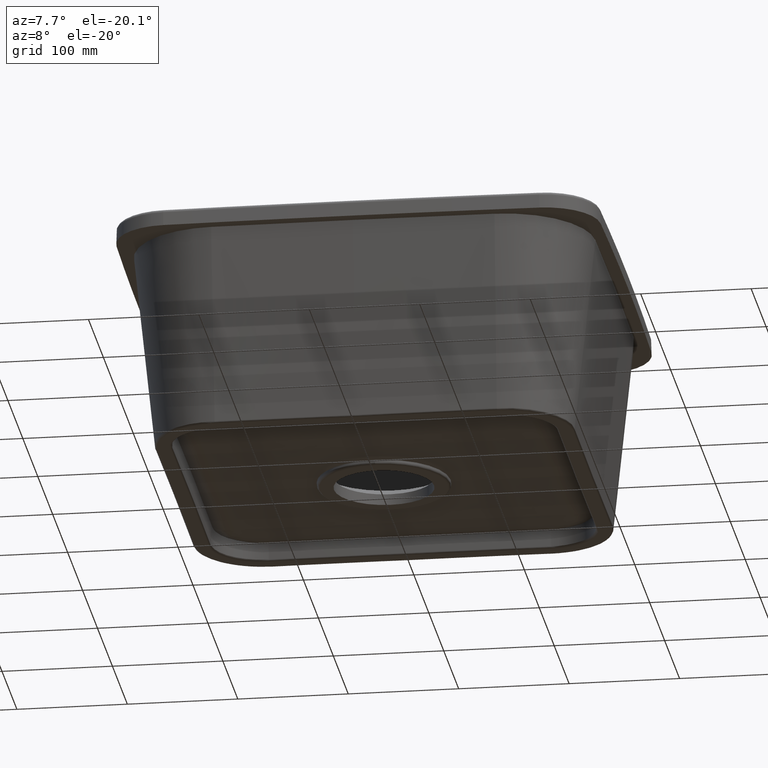
[diagram: clean part render]
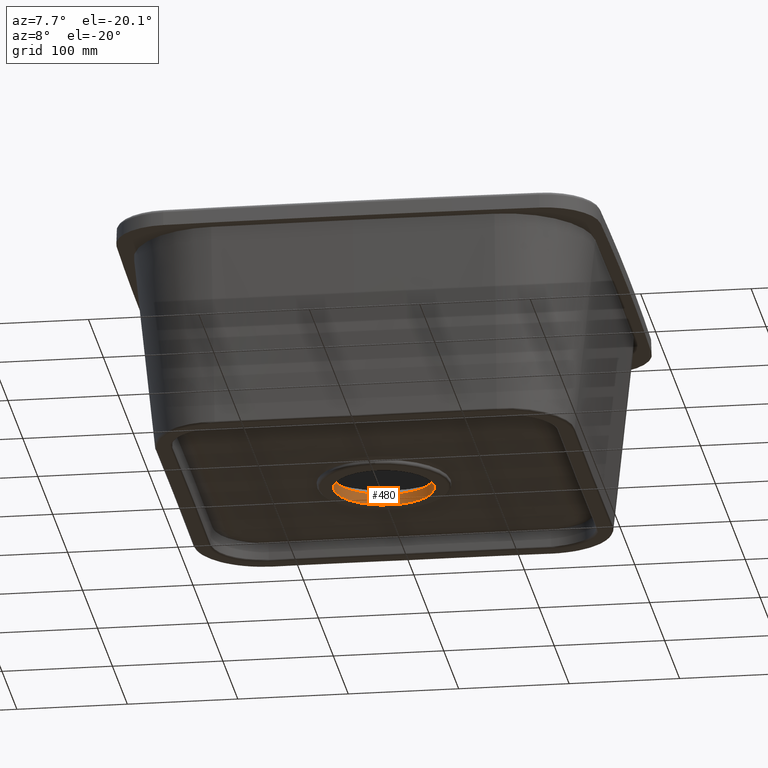
[diagram: same view with one face highlighted and labeled with its STEP entity id]
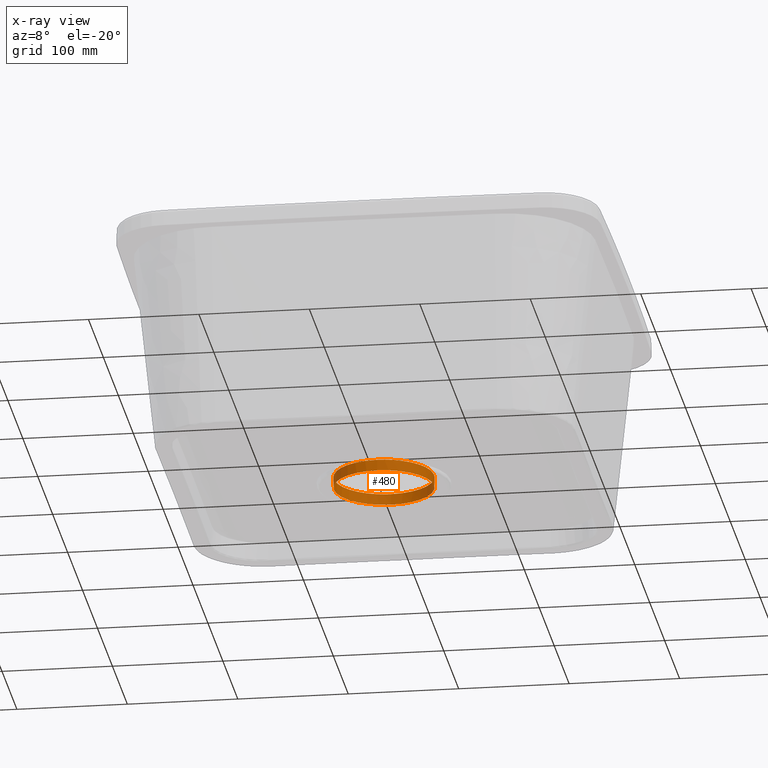
[diagram: x-ray of the same camera — body ghosted, the highlighted face saturated]
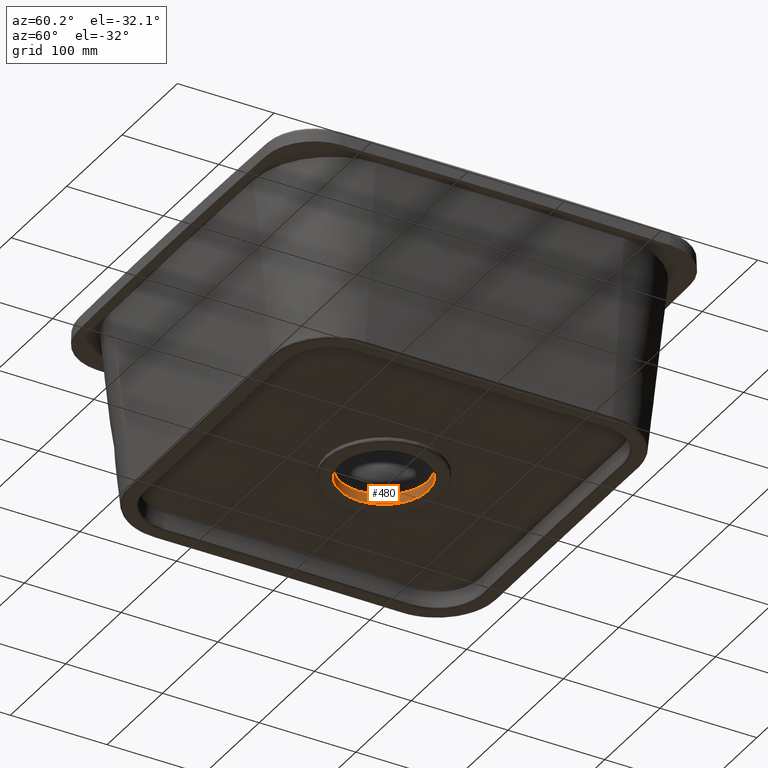
[diagram: same view with one face highlighted and labeled with its STEP entity id]
A machine part, auxiliary view. The second image highlights one B-rep face of the part: STEP entity #480.
The next image is the same camera in x-ray: the body ghosted, the highlighted face saturated — about 0% of this face is hidden behind the body in this view.
A second angle (auxiliary view) of the same face is appended — the face is thin or edge-on in the first view.
In plain terms, the highlighted cylindrical surface (bore or boss wall) has radius 45.3568 mm, axis along (0, 0, 1).
Its self-contained STEP definition (entity closure, byte-faithful):
#42=CYLINDRICAL_SURFACE('',#3051,45.3567920678671);
#43=FACE_BOUND('',#958,.T.);
#44=FACE_BOUND('',#959,.T.);
#480=ADVANCED_FACE('',(#43,#44),#42,.F.);
#958=EDGE_LOOP('',(#1536,#1537,#1538,#1539));
#959=EDGE_LOOP('',(#1540,#1541,#1542,#1543));
#1536=ORIENTED_EDGE('',*,*,#2474,.F.);
#1537=ORIENTED_EDGE('',*,*,#2447,.F.);
#1538=ORIENTED_EDGE('',*,*,#2475,.F.);
#1539=ORIENTED_EDGE('',*,*,#2476,.F.);
#1540=ORIENTED_EDGE('',*,*,#2437,.F.);
#1541=ORIENTED_EDGE('',*,*,#2440,.F.);
#1542=ORIENTED_EDGE('',*,*,#2442,.F.);
#1543=ORIENTED_EDGE('',*,*,#2443,.F.);
#2092=VERTEX_POINT('',#11851);
#2093=VERTEX_POINT('',#11862);
#2094=VERTEX_POINT('',#11866);
#2095=VERTEX_POINT('',#11879);
#2097=VERTEX_POINT('',#11904);
#2099=VERTEX_POINT('',#11925);
#2113=VERTEX_POINT('',#11999);
#2114=VERTEX_POINT('',#12039);
#2437=EDGE_CURVE('',#2092,#2093,#2828,.T.);
#2440=EDGE_CURVE('',#2094,#2092,#2829,.T.);
#2442=EDGE_CURVE('',#2095,#2094,#2830,.T.);
#2443=EDGE_CURVE('',#2093,#2095,#2831,.T.);
#2447=EDGE_CURVE('',#2099,#2097,#2833,.T.);
#2474=EDGE_CURVE('',#2097,#2113,#2839,.T.);
#2475=EDGE_CURVE('',#2114,#2099,#2840,.T.);
#2476=EDGE_CURVE('',#2113,#2114,#2841,.T.);
#2828=B_SPLINE_CURVE_WITH_KNOTS('',3,(#11852,#11853,#11854,#11855,#11856,
#11857,#11858,#11859,#11860,#11861),.UNSPECIFIED.,.F.,.F.,(4,2,2,2,4),(0.,
0.25,0.5,0.75,1.),.UNSPECIFIED.);
#2829=B_SPLINE_CURVE_WITH_KNOTS('',3,(#11867,#11868,#11869,#11870,#11871,
#11872,#11873,#11874,#11875,#11876),.UNSPECIFIED.,.F.,.F.,(4,2,2,2,4),(0.,
0.25,0.5,0.75,1.),.UNSPECIFIED.);
#2830=B_SPLINE_CURVE_WITH_KNOTS('',3,(#11880,#11881,#11882,#11883,#11884,
#11885,#11886,#11887,#11888,#11889),.UNSPECIFIED.,.F.,.F.,(4,2,2,2,4),(0.,
0.25,0.5,0.75,1.),.UNSPECIFIED.);
#2831=B_SPLINE_CURVE_WITH_KNOTS('',3,(#11891,#11892,#11893,#11894,#11895,
#11896,#11897,#11898,#11899,#11900),.UNSPECIFIED.,.F.,.F.,(4,2,2,2,4),(0.,
0.25,0.5,0.75,1.),.UNSPECIFIED.);
#2833=B_SPLINE_CURVE_WITH_KNOTS('',3,(#11926,#11927,#11928,#11929,#11930,
#11931,#11932,#11933,#11934,#11935),.UNSPECIFIED.,.F.,.F.,(4,2,2,2,4),(0.,
0.25,0.5,0.75,1.),.UNSPECIFIED.);
#2839=B_SPLINE_CURVE_WITH_KNOTS('',3,(#12018,#12019,#12020,#12021,#12022,
#12023,#12024,#12025,#12026,#12027),.UNSPECIFIED.,.F.,.F.,(4,2,2,2,4),(0.,
0.25,0.5,0.75,1.),.UNSPECIFIED.);
#2840=B_SPLINE_CURVE_WITH_KNOTS('',3,(#12029,#12030,#12031,#12032,#12033,
#12034,#12035,#12036,#12037,#12038),.UNSPECIFIED.,.F.,.F.,(4,2,2,2,4),(0.,
0.25,0.5,0.75,1.),.UNSPECIFIED.);
#2841=B_SPLINE_CURVE_WITH_KNOTS('',3,(#12040,#12041,#12042,#12043,#12044,
#12045,#12046,#12047,#12048,#12049),.UNSPECIFIED.,.F.,.F.,(4,2,2,2,4),(0.,
0.25,0.5,0.75,1.),.UNSPECIFIED.);
#3051=AXIS2_PLACEMENT_3D('',#12050,#3338,#3339);
#3338=DIRECTION('',(0.,0.,1.));
#3339=DIRECTION('',(1.,0.,0.));
#11851=CARTESIAN_POINT('',(-45.3567920678671,4.44368401804044E-15,-20.0000000000001));
#11852=CARTESIAN_POINT('',(-45.3567920678671,5.55460502255055E-15,-20.0000000000001));
#11853=CARTESIAN_POINT('',(-45.3567920678671,-6.0144246893901,-20.0000000000001));
#11854=CARTESIAN_POINT('',(-44.2056487756089,-11.8008727654302,-20.0000000000001));
#11855=CARTESIAN_POINT('',(-39.6027749281364,-22.9137129737719,-20.0000000000001));
#11856=CARTESIAN_POINT('',(-36.3246956303753,-27.8193542171313,-20.0000000000001));
#11857=CARTESIAN_POINT('',(-27.8194948577388,-36.3248362709827,-20.0000000000001));
#11858=CARTESIAN_POINT('',(-22.9138769768389,-39.6024917078764,-20.0000000000001));
#11859=CARTESIAN_POINT('',(-11.8007087623633,-44.2059319958689,-20.0000000000001));
#11860=CARTESIAN_POINT('',(-6.01494447249628,-45.3567920678671,-20.0000000000001));
#11861=CARTESIAN_POINT('',(-8.33190753382582E-15,-45.3567920678671,-20.0000000000001));
#11862=CARTESIAN_POINT('',(-6.66552602706066E-15,-45.3567920678671,-20.0000000000001));
#11866=CARTESIAN_POINT('',(2.22184200902022E-15,45.3567920678671,-20.0000000000001));
#11867=CARTESIAN_POINT('',(2.77730251127527E-15,45.3567920678671,-20.0000000000001));
#11868=CARTESIAN_POINT('',(-6.01442468944335,45.3567920678671,-20.0000000000001));
#11869=CARTESIAN_POINT('',(-11.8008727653925,44.2056487756466,-20.0000000000001));
#11870=CARTESIAN_POINT('',(-22.9137129738096,39.6027749280988,-20.0000000000001));
#11871=CARTESIAN_POINT('',(-27.8193542170804,36.3246956304262,-20.0000000000001));
#11872=CARTESIAN_POINT('',(-36.3248362710336,27.8194948576879,-20.0000000000001));
#11873=CARTESIAN_POINT('',(-39.6024917078764,22.9138769769108,-20.0000000000001));
#11874=CARTESIAN_POINT('',(-44.2059319958689,11.8007087622914,-20.0000000000001));
#11875=CARTESIAN_POINT('',(-45.3567920678671,6.01494447242434,-20.0000000000001));
#11876=CARTESIAN_POINT('',(-45.3567920678671,5.55460502255055E-15,-20.0000000000001));
#11879=CARTESIAN_POINT('',(45.3567920678671,-4.44368401804044E-15,-20.0000000000001));
#11880=CARTESIAN_POINT('',(45.3567920678671,0.,-20.0000000000001));
#11881=CARTESIAN_POINT('',(45.3567920678671,6.01442468944336,-20.0000000000001));
#11882=CARTESIAN_POINT('',(44.2056487756466,11.8008727653925,-20.0000000000001));
#11883=CARTESIAN_POINT('',(39.6027749280988,22.9137129738096,-20.0000000000001));
#11884=CARTESIAN_POINT('',(36.3246956304065,27.8193542171001,-20.0000000000001));
#11885=CARTESIAN_POINT('',(27.8194948577076,36.3248362710139,-20.0000000000001));
#11886=CARTESIAN_POINT('',(22.9138769768829,39.6024917078764,-20.0000000000001));
#11887=CARTESIAN_POINT('',(11.8007087623192,44.2059319958689,-20.0000000000001));
#11888=CARTESIAN_POINT('',(6.01494447245215,45.3567920678671,-20.0000000000001));
#11889=CARTESIAN_POINT('',(2.77730251127527E-15,45.3567920678671,-20.0000000000001));
#11891=CARTESIAN_POINT('',(-8.33190753382582E-15,-45.3567920678671,-20.0000000000001));
#11892=CARTESIAN_POINT('',(6.0144246893738,-45.3567920678671,-20.0000000000001));
#11893=CARTESIAN_POINT('',(11.8008727653942,-44.2056487756171,-20.0000000000001));
#11894=CARTESIAN_POINT('',(22.9137129738079,-39.6027749281283,-20.0000000000001));
#11895=CARTESIAN_POINT('',(27.8193542170984,-36.324695630436,-20.0000000000001));
#11896=CARTESIAN_POINT('',(36.3248362710156,-27.8194948576781,-20.0000000000001));
#11897=CARTESIAN_POINT('',(39.6024917078764,-22.9138769768575,-20.0000000000001));
#11898=CARTESIAN_POINT('',(44.2059319958689,-11.8007087623446,-20.0000000000001));
#11899=CARTESIAN_POINT('',(45.3567920678671,-6.01494447247759,-20.0000000000001));
#11900=CARTESIAN_POINT('',(45.3567920678671,-1.11092100451011E-14,-20.0000000000001));
#11904=CARTESIAN_POINT('',(-5.55460502255055E-15,-45.3567920678671,-9.89763571439079));
#11925=CARTESIAN_POINT('',(45.3567920678671,-3.33276301353033E-15,-9.89763571439079));
#11926=CARTESIAN_POINT('',(45.3567920678671,-1.11092100451011E-14,-9.89763571439079));
#11927=CARTESIAN_POINT('',(45.3567920678671,-5.93719019795047,-9.89763571439079));
#11928=CARTESIAN_POINT('',(44.1762761754287,-11.872044365088,-9.89763571439079));
#11929=CARTESIAN_POINT('',(39.6321475283166,-22.8425413741141,-9.89763571439079));
#11930=CARTESIAN_POINT('',(36.2703226942221,-27.873867793892,-9.89763571439079));
#11931=CARTESIAN_POINT('',(27.8738677938919,-36.2703226942221,-9.89763571439079));
#11932=CARTESIAN_POINT('',(22.8425413741141,-39.6321475283166,-9.89763571439079));
#11933=CARTESIAN_POINT('',(11.872044365088,-44.1762761754287,-9.89763571439079));
#11934=CARTESIAN_POINT('',(5.93719019795045,-45.3567920678671,-9.89763571439079));
#11935=CARTESIAN_POINT('',(-8.33190753382582E-15,-45.3567920678671,-9.89763571439079));
#11999=CARTESIAN_POINT('',(-45.3567920678671,4.44368401804044E-15,-9.89763571439079));
#12018=CARTESIAN_POINT('',(-2.77730251127527E-15,-45.3567920678671,-9.89763571439079));
#12019=CARTESIAN_POINT('',(-5.93719019795046,-45.3567920678671,-9.89763571439079));
#12020=CARTESIAN_POINT('',(-11.872044365088,-44.1762761754287,-9.89763571439079));
#12021=CARTESIAN_POINT('',(-22.8425413741141,-39.6321475283166,-9.89763571439079));
#12022=CARTESIAN_POINT('',(-27.873867793892,-36.2703226942221,-9.89763571439079));
#12023=CARTESIAN_POINT('',(-36.2703226942221,-27.8738677938919,-9.89763571439079));
#12024=CARTESIAN_POINT('',(-39.6321475283166,-22.8425413741141,-9.89763571439079));
#12025=CARTESIAN_POINT('',(-44.1762761754287,-11.872044365088,-9.89763571439079));
#12026=CARTESIAN_POINT('',(-45.3567920678671,-5.93719019795046,-9.89763571439079));
#12027=CARTESIAN_POINT('',(-45.3567920678671,0.,-9.89763571439079));
#12029=CARTESIAN_POINT('',(2.77730251127527E-15,45.3567920678671,-9.89763571439079));
#12030=CARTESIAN_POINT('',(5.93719019795046,45.3567920678671,-9.89763571439079));
#12031=CARTESIAN_POINT('',(11.872044365088,44.1762761754287,-9.89763571439079));
#12032=CARTESIAN_POINT('',(22.8425413741141,39.6321475283166,-9.89763571439079));
#12033=CARTESIAN_POINT('',(27.873867793892,36.2703226942221,-9.89763571439079));
#12034=CARTESIAN_POINT('',(36.2703226942221,27.8738677938919,-9.89763571439079));
#12035=CARTESIAN_POINT('',(39.6321475283166,22.8425413741141,-9.89763571439079));
#12036=CARTESIAN_POINT('',(44.1762761754287,11.872044365088,-9.89763571439079));
#12037=CARTESIAN_POINT('',(45.3567920678671,5.93719019795046,-9.89763571439079));
#12038=CARTESIAN_POINT('',(45.3567920678671,0.,-9.89763571439079));
#12039=CARTESIAN_POINT('',(-2.70997557169548E-15,45.3567920678671,-9.89763571439079));
#12040=CARTESIAN_POINT('',(-45.3567920678671,1.11092100451011E-14,-9.89763571439079));
#12041=CARTESIAN_POINT('',(-45.3567920678671,5.93719019795047,-9.89763571439079));
#12042=CARTESIAN_POINT('',(-44.1762761754287,11.872044365088,-9.89763571439079));
#12043=CARTESIAN_POINT('',(-39.6321475283166,22.8425413741141,-9.89763571439079));
#12044=CARTESIAN_POINT('',(-36.2703226942221,27.873867793892,-9.89763571439079));
#12045=CARTESIAN_POINT('',(-27.8738677938919,36.2703226942221,-9.89763571439079));
#12046=CARTESIAN_POINT('',(-22.8425413741141,39.6321475283166,-9.89763571439079));
#12047=CARTESIAN_POINT('',(-11.872044365088,44.1762761754287,-9.89763571439079));
#12048=CARTESIAN_POINT('',(-5.93719019795045,45.3567920678671,-9.89763571439079));
#12049=CARTESIAN_POINT('',(8.33190753382582E-15,45.3567920678671,-9.89763571439079));
#12050=CARTESIAN_POINT('',(0.,0.,-479.897635714391));